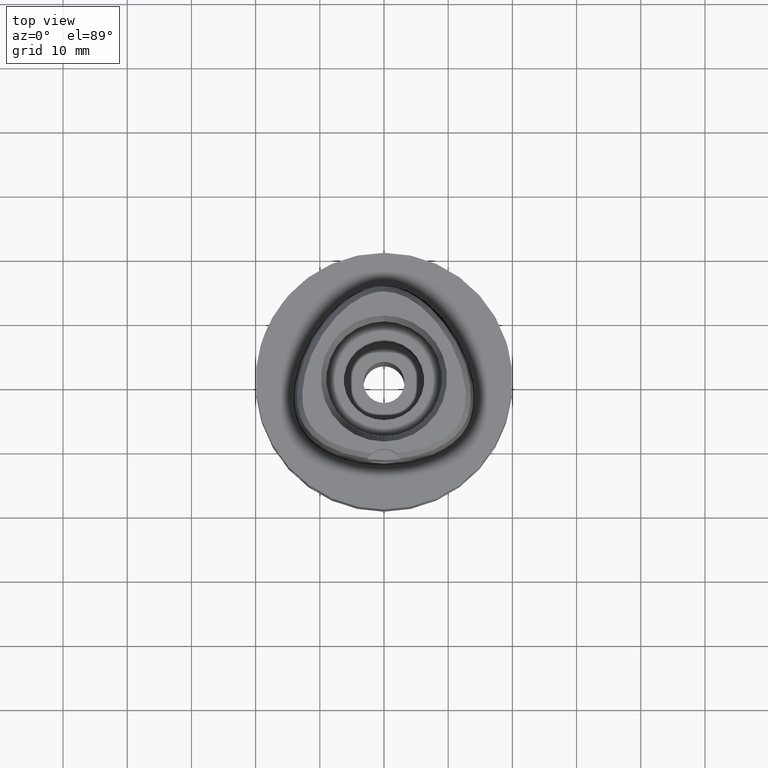
[diagram: clean part render]
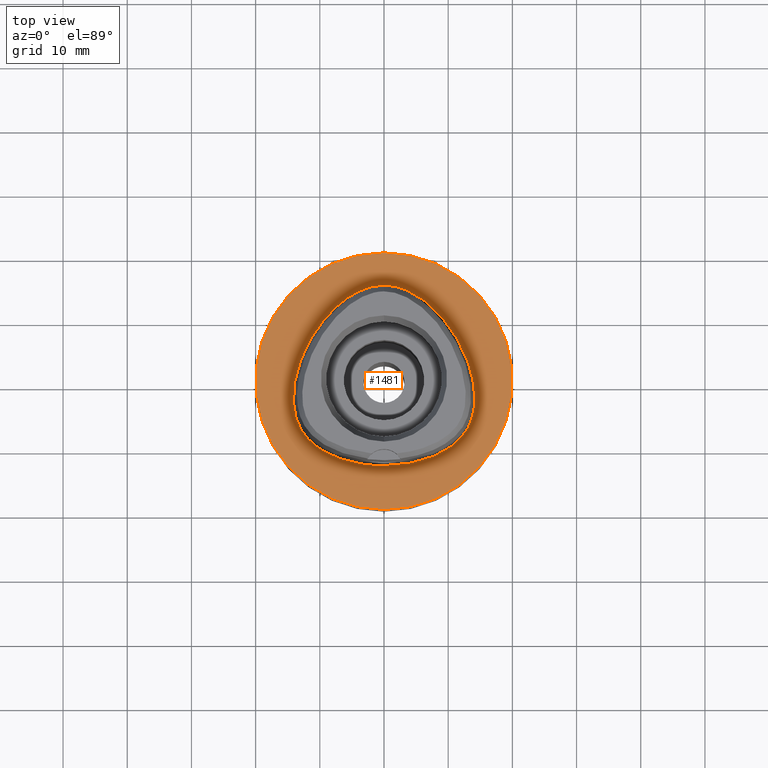
[diagram: same view with one face highlighted and labeled with its STEP entity id]
A machine part, top view. The second image highlights one B-rep face of the part: STEP entity #1481.
In plain terms, the highlighted planar face has unit normal (0, 0, -1).
Its self-contained STEP definition (entity closure, byte-faithful):
#50 = CARTESIAN_POINT ( 'NONE',  ( 3.782076377241596621, 14.19393594484588661, -3.214111920948718726E-07 ) ) ;
#51 = EDGE_CURVE ( 'NONE', #4697, #2570, #2668, .T. ) ;
#93 = CARTESIAN_POINT ( 'NONE',  ( 12.52522393408639800, -8.173666410984072428, -3.214111920948718726E-07 ) ) ;
#167 = B_SPLINE_CURVE_WITH_KNOTS ( 'NONE', 3,
 ( #406, #4119, #1486, #2267, #1163, #3740, #1867, #93, #4074, #1534, #3360, #2637, #454, #1553, #4419, #3007, #1118, #3334, #50, #4485, #2241, #2987 ),
 .UNSPECIFIED., .F., .F.,
 ( 4, 1, 1, 1, 1, 1, 1, 1, 1, 1, 1, 1, 1, 1, 1, 1, 1, 1, 1, 4 ),
 ( 0.0000000000000000000, 0.08333333333314001112, 0.1666666666663000063, 0.2083333333328000192, 0.2499999999994000077, 0.2916666666659999962, 0.3124999999992999489, 0.3333333333325000369, 0.3541666666659000207, 0.3749999999990999977, 0.4166666666657000140, 0.4583333333321999992, 0.4999999999987999599, 0.5833333333318999614, 0.6666666666650999939, 0.7499999999983000265, 0.8333333333314000280, 0.9166666666646000605, 0.9583333333311000457, 1.000000000000000000 ),
 .UNSPECIFIED. ) ;
#241 = CARTESIAN_POINT ( 'NONE',  ( -14.05597389727541291, -4.368733593951229288, -5.669709168300285373E-08 ) ) ;
#248 = ORIENTED_EDGE ( 'NONE', *, *, #4445, .F. ) ;
#314 = CARTESIAN_POINT ( 'NONE',  ( -10.81142122336929745, -9.988463672994145170, -5.669709168300285373E-08 ) ) ;
#393 = ORIENTED_EDGE ( 'NONE', *, *, #4171, .F. ) ;
#406 = CARTESIAN_POINT ( 'NONE',  ( -1.171901982879999956E-13, -13.16299999999999848, 2.757053844486000457E-13 ) ) ;
#439 = CARTESIAN_POINT ( 'NONE',  ( 0.0000000000000000000, 20.00000000000000000, 0.0000000000000000000 ) ) ;
#454 = CARTESIAN_POINT ( 'NONE',  ( 14.17320397397294762, -2.619206249943720088, -3.214111920948718726E-07 ) ) ;
#580 = CIRCLE ( 'NONE', #3268, 20.00000000000000000 ) ;
#643 = CARTESIAN_POINT ( 'NONE',  ( -12.97089751615998843, -7.488751172585052629, -5.669709168300285373E-08 ) ) ;
#644 = AXIS2_PLACEMENT_3D ( 'NONE', #803, #4392, #4443 ) ;
#688 = CARTESIAN_POINT ( 'NONE',  ( -13.21414037181149759, 2.960287500484302115, -5.669709168300285373E-08 ) ) ;
#728 = EDGE_LOOP ( 'NONE', ( #248, #393 ) ) ;
#803 = CARTESIAN_POINT ( 'NONE',  ( 0.0000000000000000000, 1.224646799146999965E-14, 0.0000000000000000000 ) ) ;
#859 = ORIENTED_EDGE ( 'NONE', *, *, #51, .F. ) ;
#959 = CIRCLE ( 'NONE', #1428, 20.00000000000000000 ) ;
#978 = CARTESIAN_POINT ( 'NONE',  ( -11.83679699305020705, -9.028767383791175050, -5.669709168300285373E-08 ) ) ;
#1048 = CARTESIAN_POINT ( 'NONE',  ( 1.391669062212000189E-10, 14.96299999995999919, 2.762789996779999925E-13 ) ) ;
#1096 = EDGE_LOOP ( 'NONE', ( #859, #4555 ) ) ;
#1118 = CARTESIAN_POINT ( 'NONE',  ( 9.170754368918242250, 9.963637505208904344, -3.214111920948718726E-07 ) ) ;
#1163 = CARTESIAN_POINT ( 'NONE',  ( 9.354901137188432969, -10.96475156951069785, -3.214111920948718726E-07 ) ) ;
#1366 = CARTESIAN_POINT ( 'NONE',  ( -13.34121471495692646, -6.760328906826046591, -5.669709168300285373E-08 ) ) ;
#1425 = EDGE_CURVE ( 'NONE', #2570, #4697, #167, .T. ) ;
#1428 = AXIS2_PLACEMENT_3D ( 'NONE', #3617, #4615, #4711 ) ;
#1465 = FACE_BOUND ( 'NONE', #1096, .T. ) ;
#1481 = ADVANCED_FACE ( 'NONE', ( #4466, #1465 ), #4096, .F. ) ;
#1486 = CARTESIAN_POINT ( 'NONE',  ( 4.043386009150722771, -12.92392500795434529, -3.214111920948718726E-07 ) ) ;
#1534 = CARTESIAN_POINT ( 'NONE',  ( 13.34121472101703354, -6.760328909519927265, -3.214111920948718726E-07 ) ) ;
#1553 = CARTESIAN_POINT ( 'NONE',  ( 14.00068088812223444, -0.1863062485848895056, -3.214111920948718726E-07 ) ) ;
#1703 = CARTESIAN_POINT ( 'NONE',  ( -9.354901133909983457, -10.96475156373070448, -5.669709168300285373E-08 ) ) ;
#1730 = CARTESIAN_POINT ( 'NONE',  ( -6.372642521972315954, 12.66899062612267990, -5.669709168300285373E-08 ) ) ;
#1757 = CARTESIAN_POINT ( 'NONE',  ( -1.171901982879999956E-13, -13.16299999999999848, 2.757053844486000457E-13 ) ) ;
#1867 = CARTESIAN_POINT ( 'NONE',  ( 11.83679699787978556, -9.028767388362165747, -3.214111920948718726E-07 ) ) ;
#2165 = CARTESIAN_POINT ( 'NONE',  ( 0.0000000000000000000, 1.265672466918999865E-14, 0.0000000000000000000 ) ) ;
#2241 = CARTESIAN_POINT ( 'NONE',  ( 0.5439938579168607236, 14.96300000804526498, -3.214111920948718726E-07 ) ) ;
#2267 = CARTESIAN_POINT ( 'NONE',  ( 7.161686388216766730, -12.03179219509339681, -3.214111920948718726E-07 ) ) ;
#2453 = CARTESIAN_POINT ( 'NONE',  ( -7.161686385950879696, -12.03179218883917478, -5.669709168300285373E-08 ) ) ;
#2499 = CARTESIAN_POINT ( 'NONE',  ( -14.17320396734037580, -2.619206249990330804, -5.669709168300285373E-08 ) ) ;
#2570 = VERTEX_POINT ( 'NONE', #4420 ) ;
#2637 = CARTESIAN_POINT ( 'NONE',  ( 14.05597390384698286, -4.368733594889532057, -3.214111920948718726E-07 ) ) ;
#2648 = CARTESIAN_POINT ( 'NONE',  ( 1.391669062212000189E-10, 14.96299999995999919, 2.762789996779999925E-13 ) ) ;
#2668 = B_SPLINE_CURVE_WITH_KNOTS ( 'NONE', 3,
 ( #1048, #3996, #3606, #4659, #1730, #3213, #2840, #688, #2890, #2499, #241, #2790, #1366, #643, #4294, #978, #314, #1703, #2453, #3931, #3584, #1757 ),
 .UNSPECIFIED., .F., .F.,
 ( 4, 1, 1, 1, 1, 1, 1, 1, 1, 1, 1, 1, 1, 1, 1, 1, 1, 1, 1, 4 ),
 ( 0.0000000000000000000, 0.04166666667007999647, 0.08333333333659000142, 0.1666666666697000088, 0.2500000000027000069, 0.3333333333357000328, 0.4166666666688000342, 0.5000000000018000046, 0.5416666666684000209, 0.5833333333347999750, 0.6250000000013999912, 0.6458333333346000238, 0.6666666666680000075, 0.6875000000012000401, 0.7083333333343999616, 0.7500000000009999779, 0.7916666666675000741, 0.8333333333340000593, 0.9166666666671000607, 1.000000000000000000 ),
 .UNSPECIFIED. ) ;
#2790 = CARTESIAN_POINT ( 'NONE',  ( -13.73754041574827234, -5.736583203528442532, -5.669709168300285373E-08 ) ) ;
#2840 = CARTESIAN_POINT ( 'NONE',  ( -11.50301490295458606, 6.641268750712079338, -5.669709168300285373E-08 ) ) ;
#2890 = CARTESIAN_POINT ( 'NONE',  ( -14.00068088156619517, -0.1863062497503250037, -5.669709168300285373E-08 ) ) ;
#2987 = CARTESIAN_POINT ( 'NONE',  ( 1.391669062212000189E-10, 14.96299999995999919, 2.762789996779999925E-13 ) ) ;
#3007 = CARTESIAN_POINT ( 'NONE',  ( 11.50301490871979837, 6.641268754036866007, -3.214111920948718726E-07 ) ) ;
#3213 = CARTESIAN_POINT ( 'NONE',  ( -9.170754363830312172, 9.963637500918121503, -5.669709168300285373E-08 ) ) ;
#3268 = AXIS2_PLACEMENT_3D ( 'NONE', #2165, #3353, #3974 ) ;
#3334 = CARTESIAN_POINT ( 'NONE',  ( 6.372642526097357596, 12.66899063137026893, -3.214111920948718726E-07 ) ) ;
#3353 = DIRECTION ( 'NONE',  ( 0.0000000000000000000, 0.0000000000000000000, -1.000000000000000000 ) ) ;
#3360 = CARTESIAN_POINT ( 'NONE',  ( 13.73754042211853488, -5.736583205416788012, -3.214111920948718726E-07 ) ) ;
#3453 = VERTEX_POINT ( 'NONE', #439 ) ;
#3494 = VERTEX_POINT ( 'NONE', #4060 ) ;
#3584 = CARTESIAN_POINT ( 'NONE',  ( -1.347795335997829191, -13.16300000142072335, -5.669709168300285373E-08 ) ) ;
#3606 = CARTESIAN_POINT ( 'NONE',  ( -1.631981572453967688, 14.84698125139678204, -5.669709168300285373E-08 ) ) ;
#3617 = CARTESIAN_POINT ( 'NONE',  ( 0.0000000000000000000, 1.265672466918999865E-14, 0.0000000000000000000 ) ) ;
#3740 = CARTESIAN_POINT ( 'NONE',  ( 10.81142122746248901, -9.988463678223318709, -3.214111920948718726E-07 ) ) ;
#3931 = CARTESIAN_POINT ( 'NONE',  ( -4.043386007979997920, -12.92392500140830691, -5.669709168300285373E-08 ) ) ;
#3974 = DIRECTION ( 'NONE',  ( 0.0000000000000000000, 1.000000000000000000, 0.0000000000000000000 ) ) ;
#3996 = CARTESIAN_POINT ( 'NONE',  ( -0.5439938574415805750, 14.96300000142791475, -5.669709168300285373E-08 ) ) ;
#4060 = CARTESIAN_POINT ( 'NONE',  ( 0.0000000000000000000, -20.00000000000000000, 0.0000000000000000000 ) ) ;
#4074 = CARTESIAN_POINT ( 'NONE',  ( 12.97089752189382317, -7.488751175900437929, -3.214111920948718726E-07 ) ) ;
#4096 = PLANE ( 'NONE',  #644 ) ;
#4119 = CARTESIAN_POINT ( 'NONE',  ( 1.347795336384674192, -13.16300000803088999, -3.214111920948718726E-07 ) ) ;
#4171 = EDGE_CURVE ( 'NONE', #3494, #3453, #959, .T. ) ;
#4294 = CARTESIAN_POINT ( 'NONE',  ( -12.52522392872977086, -8.173666407084489549, -5.669709168300285373E-08 ) ) ;
#4392 = DIRECTION ( 'NONE',  ( 0.0000000000000000000, 0.0000000000000000000, -1.000000000000000000 ) ) ;
#4419 = CARTESIAN_POINT ( 'NONE',  ( 13.21414037806895792, 2.960287502746432153, -3.214111920948718726E-07 ) ) ;
#4420 = CARTESIAN_POINT ( 'NONE',  ( -1.171901982879999956E-13, -13.16299999999999848, 2.757053844486000457E-13 ) ) ;
#4443 = DIRECTION ( 'NONE',  ( 0.0000000000000000000, -1.000000000000000000, 0.0000000000000000000 ) ) ;
#4445 = EDGE_CURVE ( 'NONE', #3453, #3494, #580, .T. ) ;
#4466 = FACE_OUTER_BOUND ( 'NONE', #728, .T. ) ;
#4485 = CARTESIAN_POINT ( 'NONE',  ( 1.631981573813616304, 14.84698125791135581, -3.214111920948718726E-07 ) ) ;
#4555 = ORIENTED_EDGE ( 'NONE', *, *, #1425, .F. ) ;
#4615 = DIRECTION ( 'NONE',  ( 0.0000000000000000000, 0.0000000000000000000, -1.000000000000000000 ) ) ;
#4659 = CARTESIAN_POINT ( 'NONE',  ( -3.782076374394339524, 14.19393593879478921, -5.669709168300285373E-08 ) ) ;
#4697 = VERTEX_POINT ( 'NONE', #2648 ) ;
#4711 = DIRECTION ( 'NONE',  ( 0.0000000000000000000, -1.000000000000000000, 0.0000000000000000000 ) ) ;